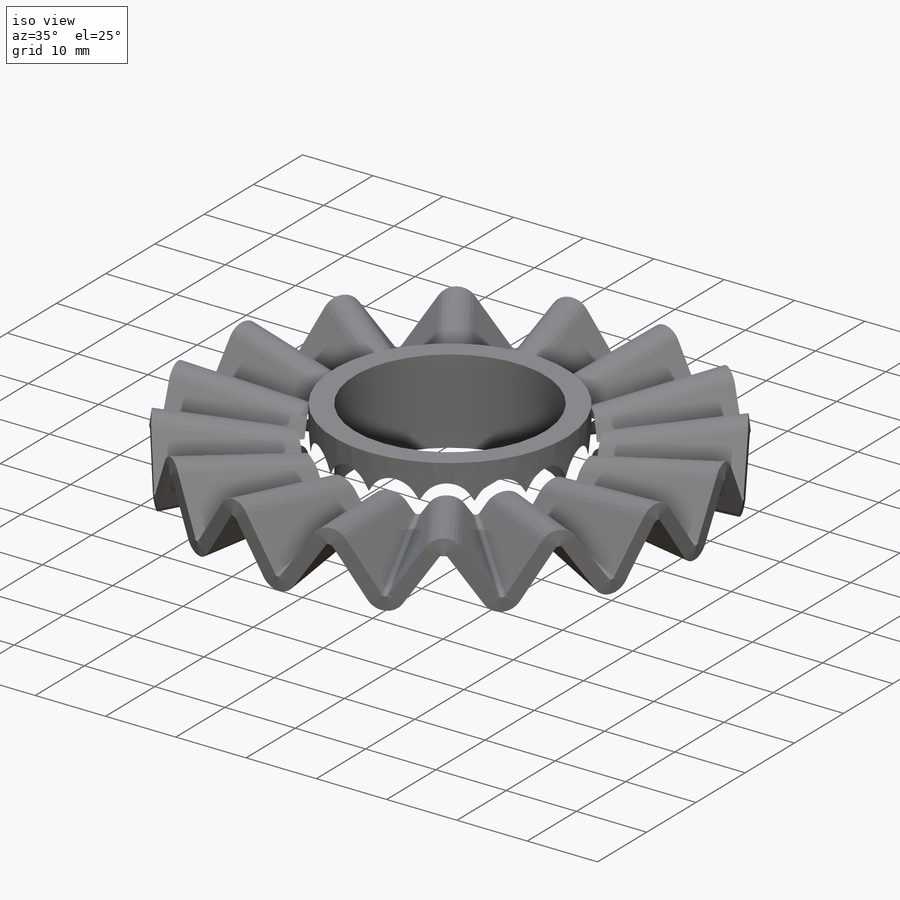
[diagram: iso view]
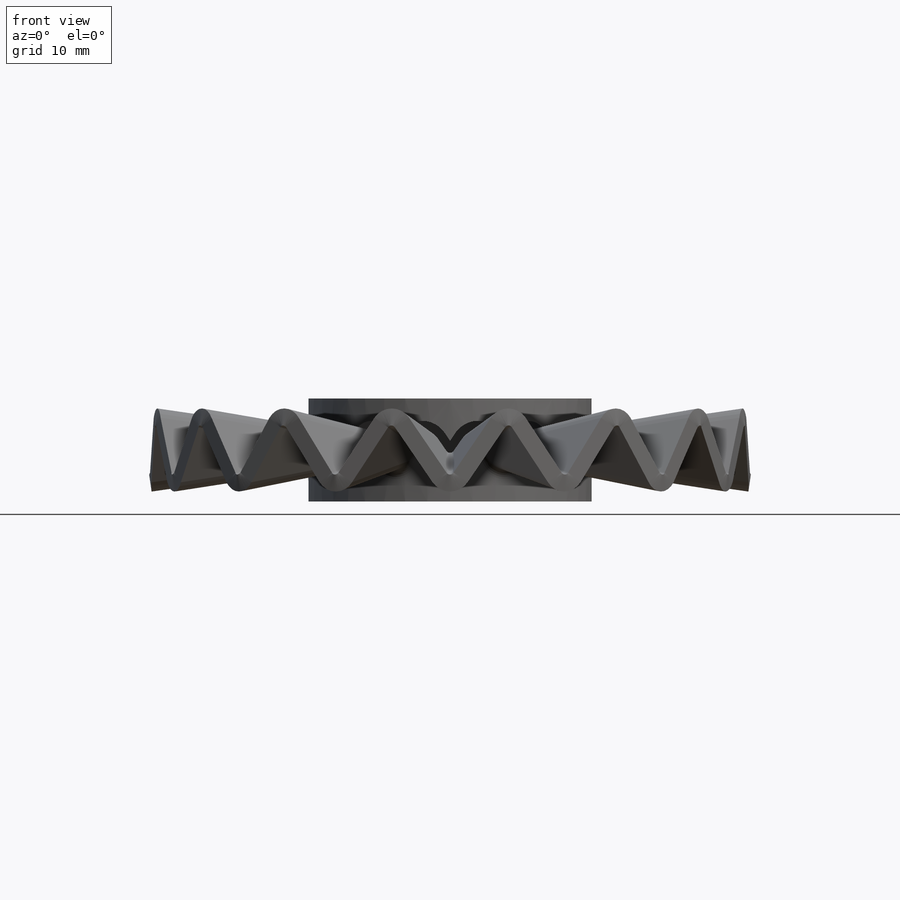
[diagram: front view]
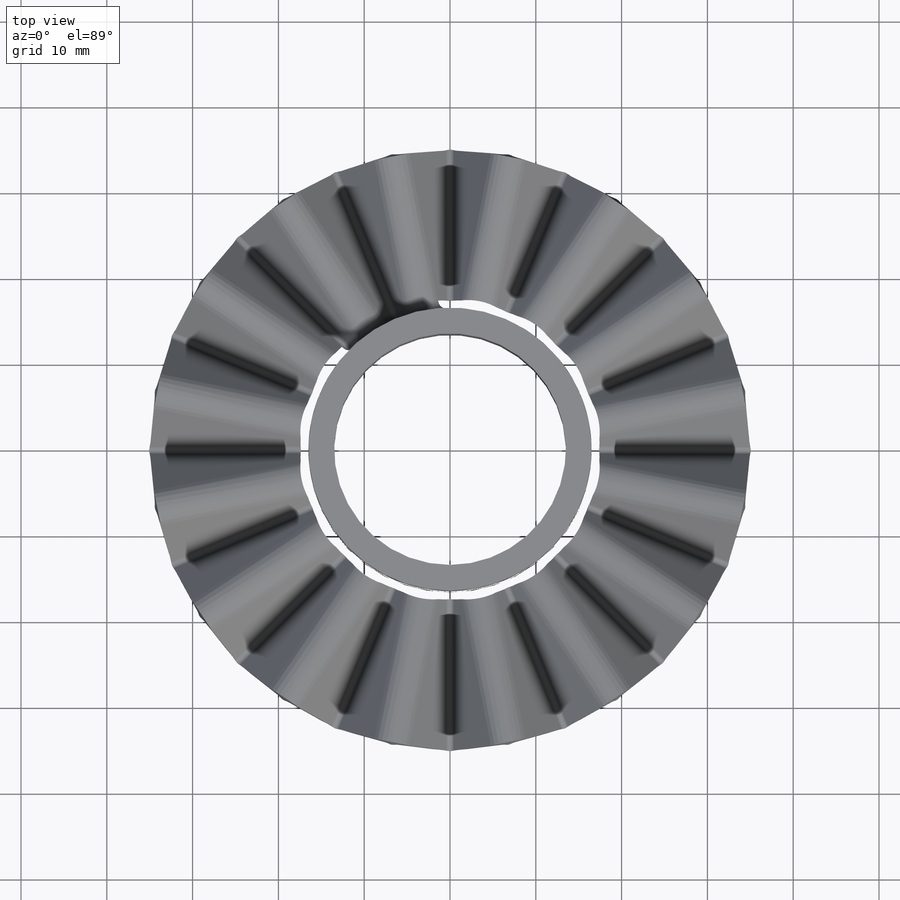
[diagram: top view]
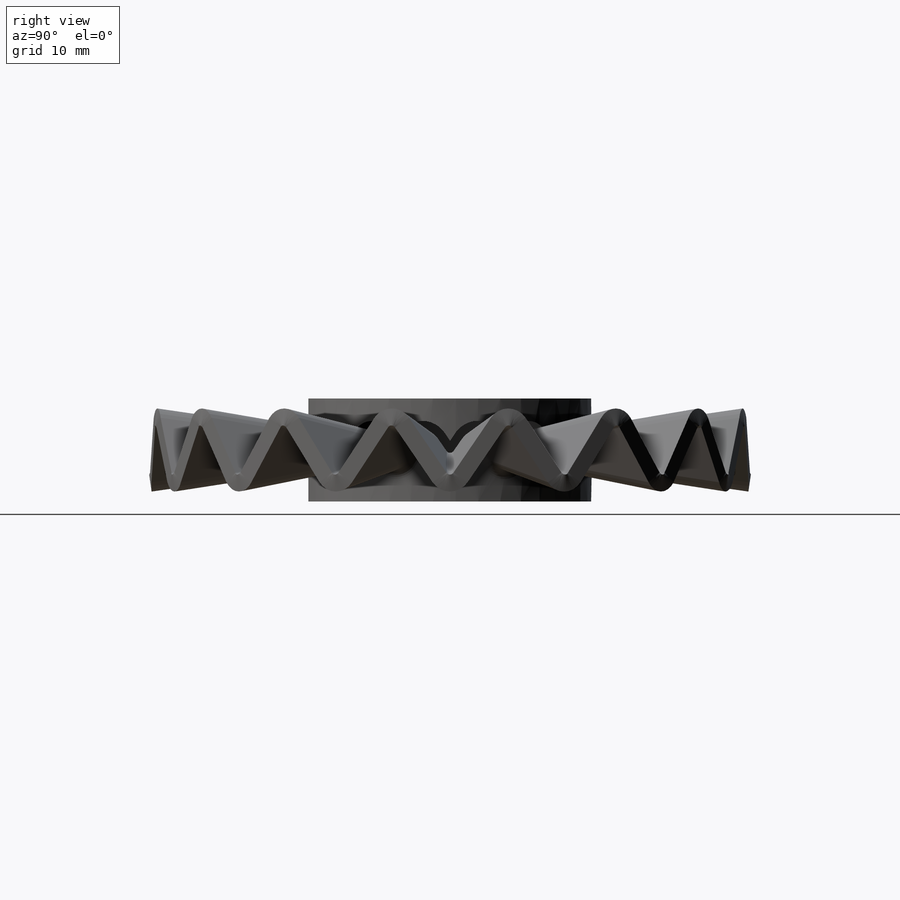
[diagram: right view]
SOLIDWORKS PART (.sldprt)
format: sldprt  version: not decoded by parser v0  size: 5,776,384 bytes
history: native  units: mm
features: plane x7, sketch x6, fillet x2, material x1, pattern_circular x1, pattern_linear x1, move_body x1 (+11 scaffold rows collapsed)
feature tree (30):
  scaffold x11  (default folders/planes/origin — collapsed)
  material  "Stahl"
  plane  "Ebene vorne"
  plane  "Ebene oben"
  plane  "Ebene rechts"
  sketch  "Skizze1"  dims[c1.D1=~63.528118mm c2.D1=30.0mm]
  plane  "Ebene1"  Offset=5mm
  plane  "Ebene2"  Offset=5mm
  sketch  "Skizze2"  dims[c1.D1=~72.329431mm c2.D1=70.0mm]
  sketch  "Skizze3"
  plane  "Ebene3"
  plane  "Ebene4"
  sketch  "3D-Skizze1"
  sketch  "Skizze4"
  pattern_circular  "Kreismuster1"  Count=16 Angle=360deg
  fillet  "Verrundung2"  Radius=1.5mm
  sketch  "Skizze1<2>"  dims[D1=6.0mm D2=6.0mm D5=3.0mm D6=1.0mm D7=5.0mm]
  fillet  "Verrundung3"  Radius=1mm
  pattern_linear  "Lineares Muster1"  Count1=5 Count2=1 Spacing1=12mm Spacing2=1mm
  move_body  "Körper-Verschieben/Kopieren1"
decode coverage: 7 of 11 modeling features carry decoded parameters
note: ~ marks probable driven/reference dimensions
note: suppression state not decoded; provenance and decode notes live in map.json
